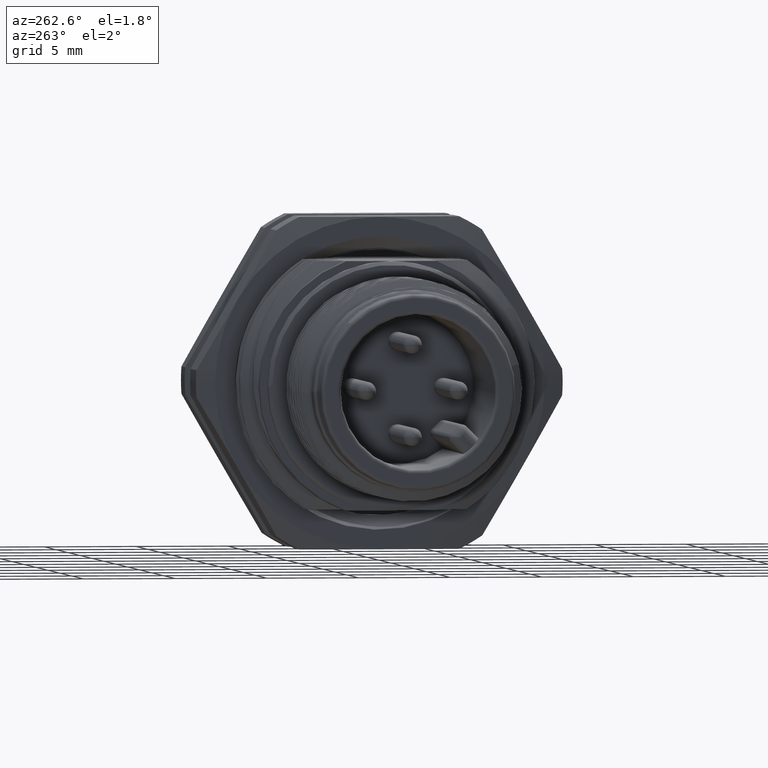
[diagram: clean part render]
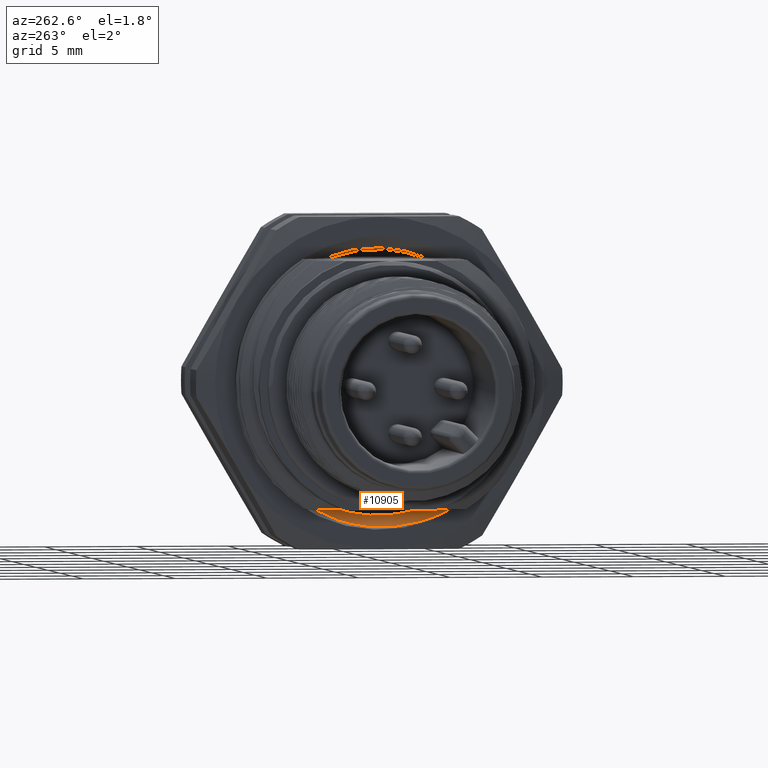
[diagram: same view with one face highlighted and labeled with its STEP entity id]
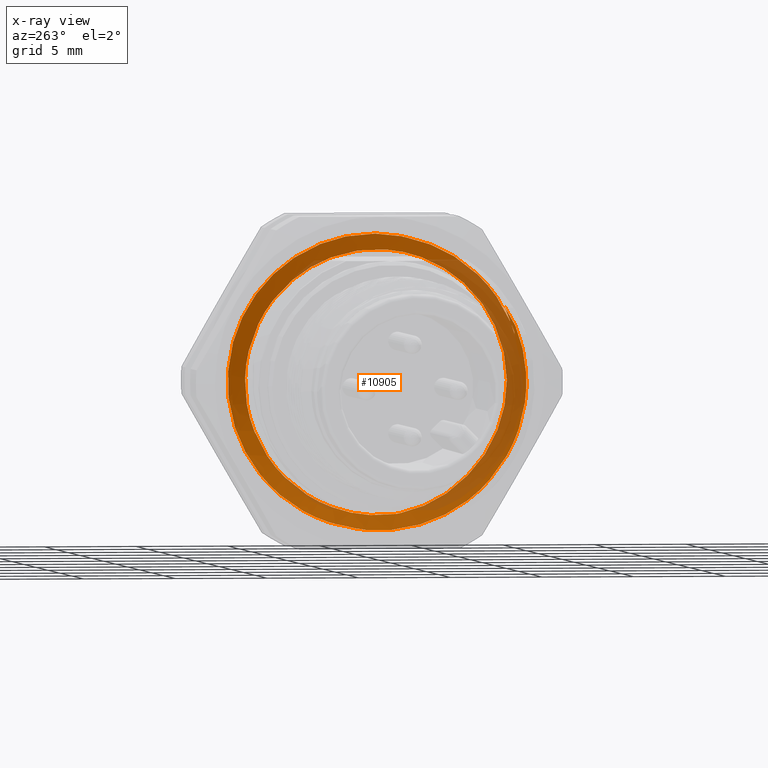
[diagram: x-ray of the same camera — body ghosted, the highlighted face saturated]
A machine part, auxiliary view. The second image highlights one B-rep face of the part: STEP entity #10905.
The next image is the same camera in x-ray: the body ghosted, the highlighted face saturated — about 34% of this face is hidden behind the body in this view.
In plain terms, the highlighted face is a freeform B-spline surface patch.
Its self-contained STEP definition (entity closure, byte-faithful):
#1769=CARTESIAN_POINT('',(1.759999964489E1,-6.795931557525E0,4.102091540967E0));
#1770=CARTESIAN_POINT('',(1.759999964489E1,-6.870510442348E0,3.991906153182E0));
#1771=CARTESIAN_POINT('',(1.759999389188E1,-7.013888288153E0,3.768115721921E0));
#1772=CARTESIAN_POINT('',(1.760002191107E1,-7.212305919957E0,3.421822081860E0));
#1773=CARTESIAN_POINT('',(1.759995294624E1,-7.332192643471E0,3.184645946563E0));
#1774=CARTESIAN_POINT('',(1.759995294624E1,-7.389397856577E0,3.064519374415E0));
#1792=CARTESIAN_POINT('',(1.684999952038E1,-5.086060040265E0,
-5.079304777779E0));
#1793=CARTESIAN_POINT('',(1.685796798191E1,-4.823459686649E0,
-5.353536325013E0));
#1794=CARTESIAN_POINT('',(1.687366803260E1,-4.253788885232E0,
-5.861059801676E0));
#1795=CARTESIAN_POINT('',(1.689796127939E1,-3.284489491633E0,
-6.481612577472E0));
#1796=CARTESIAN_POINT('',(1.692193318027E1,-2.230119204469E0,
-6.940817409034E0));
#1797=CARTESIAN_POINT('',(1.694559115843E1,-1.110619365085E0,
-7.229284465146E0));
#1798=CARTESIAN_POINT('',(1.696997098444E1,4.090123851100E-2,
-7.338212545404E0));
#1799=CARTESIAN_POINT('',(1.699348319227E1,1.197020596878E0,-7.264110894417E0));
#1800=CARTESIAN_POINT('',(1.701747815878E1,2.334140992811E0,-7.007594587236E0));
#1801=CARTESIAN_POINT('',(1.704159418216E1,3.415277133703E0,-6.576145626498E0));
#1802=CARTESIAN_POINT('',(1.706498966521E1,4.418915945452E0,-5.977781058642E0));
#1803=CARTESIAN_POINT('',(1.708923325399E1,5.319779103818E0,-5.226906965395E0));
#1804=CARTESIAN_POINT('',(1.711288316741E1,6.091491739147E0,-4.343901392401E0));
#1805=CARTESIAN_POINT('',(1.713652114921E1,6.718823047016E0,-3.344935130778E0));
#1806=CARTESIAN_POINT('',(1.716070806947E1,7.181618904648E0,-2.261847263783E0));
#1807=CARTESIAN_POINT('',(1.718397388781E1,7.469870320844E0,-1.117220751675E0));
#1808=CARTESIAN_POINT('',(1.720793966299E1,7.576666189177E0,6.617656375429E-2));
#1809=CARTESIAN_POINT('',(1.723179472965E1,7.497246604516E0,1.250084274952E0));
#1810=CARTESIAN_POINT('',(1.725509791539E1,7.232588394725E0,2.412255813783E0));
#1811=CARTESIAN_POINT('',(1.727922968734E1,6.789449136750E0,3.521261448386E0));
#1812=CARTESIAN_POINT('',(1.730262296540E1,6.178379098081E0,4.548045941363E0));
#1813=CARTESIAN_POINT('',(1.732620126636E1,5.410129212835E0,5.472740536805E0));
#1814=CARTESIAN_POINT('',(1.735021173926E1,4.509102863233E0,6.265419101540E0));
#1815=CARTESIAN_POINT('',(1.737330704205E1,3.493118017818E0,6.909941103460E0));
#1816=CARTESIAN_POINT('',(1.739721009610E1,2.383083624084E0,7.391959199171E0));
#1817=CARTESIAN_POINT('',(1.742077307499E1,1.212882635643E0,7.695102399338E0));
#1818=CARTESIAN_POINT('',(1.743642926235E1,4.073118136597E-1,7.774291706221E0));
#1819=CARTESIAN_POINT('',(1.744429947732E1,3.353992161010E-3,7.782336158824E0));
#1826=CARTESIAN_POINT('',(1.637131857850E1,-2.470798251417E0,6.750000000059E0));
#1827=CARTESIAN_POINT('',(1.638340311239E1,-2.815937909544E0,6.623663635044E0));
#1828=CARTESIAN_POINT('',(1.640756469152E1,-3.487193917543E0,6.318052158681E0));
#1829=CARTESIAN_POINT('',(1.644507645818E1,-4.417237827248E0,5.706522754052E0));
#1830=CARTESIAN_POINT('',(1.648113145260E1,-5.234295538383E0,4.966984338481E0));
#1831=CARTESIAN_POINT('',(1.651748625495E1,-5.929000217318E0,4.113449968504E0));
#1832=CARTESIAN_POINT('',(1.655488409183E1,-6.491156707167E0,3.154158007373E0));
#1833=CARTESIAN_POINT('',(1.659134508390E1,-6.901727036611E0,2.109899042490E0));
#1834=CARTESIAN_POINT('',(1.662861432181E1,-7.143371833531E0,1.022437164759E0));
#1835=CARTESIAN_POINT('',(1.666516691488E1,-7.215692313247E0,
-7.503583631873E-2));
#1836=CARTESIAN_POINT('',(1.670145208842E1,-7.119394213335E0,
-1.183367675704E0));
#1837=CARTESIAN_POINT('',(1.673948006571E1,-6.848465770686E0,
-2.278465488942E0));
#1838=CARTESIAN_POINT('',(1.677636405780E1,-6.409964878106E0,
-3.315788802447E0));
#1839=CARTESIAN_POINT('',(1.681293421966E1,-5.826172047950E0,
-4.257967132033E0));
#1840=CARTESIAN_POINT('',(1.683782900319E1,-5.345716851731E0,
-4.819306776092E0));
#1841=CARTESIAN_POINT('',(1.684999952038E1,-5.086060040265E0,
-5.079304777779E0));
#1891=CARTESIAN_POINT('',(1.534996865269E1,-5.085239577698E0,
-5.080126135244E0));
#1892=CARTESIAN_POINT('',(1.532150437920E1,-5.359050323793E0,
-4.846227517930E0));
#1893=CARTESIAN_POINT('',(1.526400599228E1,-5.876937690149E0,
-4.332816855563E0));
#1894=CARTESIAN_POINT('',(1.518048269960E1,-6.535091659273E0,
-3.441095649684E0));
#1895=CARTESIAN_POINT('',(1.509467697721E1,-7.056924963117E0,
-2.450216842963E0));
#1896=CARTESIAN_POINT('',(1.501283140325E1,-7.414900292562E0,
-1.427688785964E0));
#1897=CARTESIAN_POINT('',(1.493165911377E1,-7.627402032768E0,
-3.342668587155E-1));
#1898=CARTESIAN_POINT('',(1.484558953422E1,-7.676887701023E0,
8.177376412392E-1));
#1899=CARTESIAN_POINT('',(1.476411502074E1,-7.557086563401E0,1.934764851801E0));
#1900=CARTESIAN_POINT('',(1.468288322419E1,-7.272777433236E0,3.041608057510E0));
#1901=CARTESIAN_POINT('',(1.462772510213E1,-6.972725799039E0,3.755302890242E0));
#1902=CARTESIAN_POINT('',(1.459992037564E1,-6.795893613042E0,4.102065834945E0));
#1904=CARTESIAN_POINT('',(1.459992037564E1,-6.795893613042E0,4.102065834945E0));
#1905=CARTESIAN_POINT('',(1.459992037564E1,-6.870660487587E0,3.991702568296E0));
#1906=CARTESIAN_POINT('',(1.460003687697E1,-7.014078413820E0,3.767530428753E0));
#1907=CARTESIAN_POINT('',(1.459999036714E1,-7.212535382857E0,3.421280478472E0));
#1908=CARTESIAN_POINT('',(1.459999789202E1,-7.332358032771E0,3.184439914979E0));
#1909=CARTESIAN_POINT('',(1.459999789202E1,-7.389508797288E0,3.064567858644E0));
#1911=CARTESIAN_POINT('',(1.562111766024E1,2.470798251643E0,-6.749999999976E0));
#1912=CARTESIAN_POINT('',(1.563411221994E1,2.836739946822E0,-6.616049170253E0));
#1913=CARTESIAN_POINT('',(1.566048912442E1,3.546785272395E0,-6.288503347263E0));
#1914=CARTESIAN_POINT('',(1.569865147601E1,4.518314809828E0,-5.631149242290E0));
#1915=CARTESIAN_POINT('',(1.573775149051E1,5.370564688501E0,-4.825142785761E0));
#1916=CARTESIAN_POINT('',(1.577679923244E1,6.081026248223E0,-3.891800175125E0));
#1917=CARTESIAN_POINT('',(1.581503115074E1,6.631006685933E0,-2.855659018395E0));
#1918=CARTESIAN_POINT('',(1.585461899603E1,7.005933165283E0,-1.744114676011E0));
#1919=CARTESIAN_POINT('',(1.589286820731E1,7.195902727927E0,
-5.865262349434E-1));
#1920=CARTESIAN_POINT('',(1.593182967661E1,7.195901428262E0,5.865274610951E-1));
#1921=CARTESIAN_POINT('',(1.597102419056E1,7.005937972825E0,1.744097398652E0));
#1922=CARTESIAN_POINT('',(1.600917938833E1,6.631003732205E0,2.855666741308E0));
#1923=CARTESIAN_POINT('',(1.604873377514E1,6.081030601290E0,3.891792724281E0));
#1924=CARTESIAN_POINT('',(1.608709572742E1,5.370561175653E0,4.825147763251E0));
#1925=CARTESIAN_POINT('',(1.612591022878E1,4.518316281084E0,5.631145940189E0));
#1926=CARTESIAN_POINT('',(1.616523226426E1,3.546808501846E0,6.288491035961E0));
#1927=CARTESIAN_POINT('',(1.619063415955E1,2.836738955662E0,6.616049533062E0));
#1928=CARTESIAN_POINT('',(1.620356284954E1,2.470798251634E0,6.749999999979E0));
#4720=CARTESIAN_POINT('',(1.534996865269E1,-5.085239577698E0,
-5.080126135244E0));
#4721=CARTESIAN_POINT('',(1.536169057234E1,-4.839872329166E0,
-5.325601526469E0));
#4722=CARTESIAN_POINT('',(1.538461309847E1,-4.311335893991E0,
-5.783094934137E0));
#4723=CARTESIAN_POINT('',(1.541879632078E1,-3.432605891104E0,
-6.343995236702E0));
#4724=CARTESIAN_POINT('',(1.544218803182E1,-2.797219607513E0,
-6.630515360663E0));
#4725=CARTESIAN_POINT('',(1.545383187531E1,-2.470798251502E0,
-6.750000000028E0));
#4991=CARTESIAN_POINT('',(1.545383187531E1,-2.470798251502E0,
-6.750000000028E0));
#4992=CARTESIAN_POINT('',(1.546505626440E1,-2.156135802866E0,
-6.865180359720E0));
#4993=CARTESIAN_POINT('',(1.548715918210E1,-1.509992624646E0,
-7.051688810605E0));
#4994=CARTESIAN_POINT('',(1.552030918237E1,-5.095920920290E-1,
-7.193651930829E0));
#4995=CARTESIAN_POINT('',(1.555444996032E1,5.039603746194E-1,
-7.194117328290E0));
#4996=CARTESIAN_POINT('',(1.558774685471E1,1.506863134447E0,-7.052495329339E0));
#4997=CARTESIAN_POINT('',(1.560990377328E1,2.155002341924E0,-6.865595256507E0));
#4998=CARTESIAN_POINT('',(1.562111766024E1,2.470798251643E0,-6.749999999976E0));
#5141=CARTESIAN_POINT('',(1.620356284954E1,2.470798251634E0,6.749999999979E0));
#5142=CARTESIAN_POINT('',(1.621472032396E1,2.154991000732E0,6.865599407885E0));
#5143=CARTESIAN_POINT('',(1.623735148611E1,1.507137079639E0,7.052395313245E0));
#5144=CARTESIAN_POINT('',(1.627089833049E1,5.056994118818E-1,7.193888338206E0));
#5145=CARTESIAN_POINT('',(1.630393013574E1,-5.057011683070E-1,
7.193887596244E0));
#5146=CARTESIAN_POINT('',(1.633789856198E1,-1.507125222792E0,7.052397755271E0));
#5147=CARTESIAN_POINT('',(1.636026096829E1,-2.154987989727E0,6.865600510046E0));
#5148=CARTESIAN_POINT('',(1.637131857850E1,-2.470798251417E0,6.750000000059E0));
#5150=CARTESIAN_POINT('',(1.759995294624E1,-7.389397856577E0,3.064519374415E0));
#5151=CARTESIAN_POINT('',(1.758752648398E1,-7.227907585726E0,3.453627635215E0));
#5152=CARTESIAN_POINT('',(1.756224584879E1,-6.843602799695E0,4.206260136705E0));
#5153=CARTESIAN_POINT('',(1.752459181511E1,-6.097335804787E0,5.230604570646E0));
#5154=CARTESIAN_POINT('',(1.748693074640E1,-5.198955428018E0,6.121859226686E0));
#5155=CARTESIAN_POINT('',(1.744966962114E1,-4.184617618130E0,6.856888617194E0));
#5156=CARTESIAN_POINT('',(1.741211874402E1,-3.059058782926E0,7.427321213443E0));
#5157=CARTESIAN_POINT('',(1.737471913180E1,-1.862303720586E0,7.812780557949E0));
#5158=CARTESIAN_POINT('',(1.733730801372E1,-6.203544574359E-1,
8.009274249215E0));
#5159=CARTESIAN_POINT('',(1.729988453609E1,6.373788011952E-1,8.006709256061E0));
#5160=CARTESIAN_POINT('',(1.726244570931E1,1.880339603956E0,7.808925683913E0));
#5161=CARTESIAN_POINT('',(1.722498522774E1,3.077800955962E0,7.420282944069E0));
#5162=CARTESIAN_POINT('',(1.718751239339E1,4.199275140019E0,6.846882410905E0));
#5163=CARTESIAN_POINT('',(1.714989377532E1,5.222168122548E0,6.103326363124E0));
#5164=CARTESIAN_POINT('',(1.711255898040E1,6.109249314757E0,5.215990474021E0));
#5165=CARTESIAN_POINT('',(1.707489975328E1,6.852076990804E0,4.190968757098E0));
#5166=CARTESIAN_POINT('',(1.703725360161E1,7.426295220263E0,3.063196392284E0));
#5167=CARTESIAN_POINT('',(1.699968384438E1,7.813982922482E0,1.861625841523E0));
#5168=CARTESIAN_POINT('',(1.696224163228E1,8.007872636731E0,6.179771362672E-1));
#5169=CARTESIAN_POINT('',(1.692480711401E1,8.007817417602E0,
-6.402874280401E-1));
#5170=CARTESIAN_POINT('',(1.688730433381E1,7.807772170349E0,-1.884645137525E0));
#5171=CARTESIAN_POINT('',(1.684995790601E1,7.418922999367E0,-3.078446897724E0));
#5172=CARTESIAN_POINT('',(1.681211823363E1,6.841662937559E0,-4.211641122912E0));
#5173=CARTESIAN_POINT('',(1.677435779599E1,6.091551883392E0,-5.235552203328E0));
#5174=CARTESIAN_POINT('',(1.673661549370E1,5.191553145930E0,-6.129921347836E0));
#5175=CARTESIAN_POINT('',(1.669895010186E1,4.164409372129E0,-6.869719240303E0));
#5176=CARTESIAN_POINT('',(1.666129215999E1,3.032971763524E0,-7.437457417439E0));
#5177=CARTESIAN_POINT('',(1.662357381071E1,1.825169589818E0,-7.823301718430E0));
#5178=CARTESIAN_POINT('',(1.658585779760E1,5.718533442558E-1,
-8.012845226112E0));
#5179=CARTESIAN_POINT('',(1.654811883825E1,-6.967479166356E-1,
-8.001507691632E0));
#5180=CARTESIAN_POINT('',(1.651088499859E1,-1.931487843413E0,
-7.797242648184E0));
#5181=CARTESIAN_POINT('',(1.647351344606E1,-3.122909186105E0,
-7.400029267110E0));
#5182=CARTESIAN_POINT('',(1.643629973902E1,-4.233852574111E0,
-6.824853043643E0));
#5183=CARTESIAN_POINT('',(1.639921694597E1,-5.239362945858E0,
-6.088629406448E0));
#5184=CARTESIAN_POINT('',(1.636223220240E1,-6.114883530315E0,
-5.206346793441E0));
#5185=CARTESIAN_POINT('',(1.632519036625E1,-6.846819212765E0,
-4.199002298774E0));
#5186=CARTESIAN_POINT('',(1.628795317524E1,-7.416678441388E0,
-3.084972729146E0));
#5187=CARTESIAN_POINT('',(1.625071546401E1,-7.805092950142E0,
-1.895072719163E0));
#5188=CARTESIAN_POINT('',(1.621286480597E1,-8.008171120851E0,
-6.389727871277E-1));
#5189=CARTESIAN_POINT('',(1.617501296861E1,-8.008473430321E0,
6.331843617101E-1));
#5190=CARTESIAN_POINT('',(1.613718729350E1,-7.807040718569E0,1.888726101003E0));
#5191=CARTESIAN_POINT('',(1.609949269377E1,-7.414093715313E0,3.093346210454E0));
#5192=CARTESIAN_POINT('',(1.606184696860E1,-6.835740093180E0,4.218606953525E0));
#5193=CARTESIAN_POINT('',(1.602418464727E1,-6.087589581567E0,5.240048061326E0));
#5194=CARTESIAN_POINT('',(1.598653070294E1,-5.190089699984E0,6.132405079482E0));
#5195=CARTESIAN_POINT('',(1.594879125370E1,-4.159127667789E0,6.871304717679E0));
#5196=CARTESIAN_POINT('',(1.591147392488E1,-3.038513479987E0,7.435317638292E0));
#5197=CARTESIAN_POINT('',(1.587388035116E1,-1.835460799801E0,7.821017454258E0));
#5198=CARTESIAN_POINT('',(1.583632277080E1,-5.872566293355E-1,
8.010324430209E0));
#5199=CARTESIAN_POINT('',(1.579882348592E1,6.733023185199E-1,8.004524448845E0));
#5200=CARTESIAN_POINT('',(1.576137119861E1,1.915346737175E0,7.801106781021E0));
#5201=CARTESIAN_POINT('',(1.572390092634E1,3.111020566151E0,7.404879606557E0));
#5202=CARTESIAN_POINT('',(1.568636916253E1,4.232656767529E0,6.827456909581E0));
#5203=CARTESIAN_POINT('',(1.564902027238E1,5.244247816390E0,6.084353821323E0));
#5204=CARTESIAN_POINT('',(1.561128417728E1,6.136640777851E0,5.182729273715E0));
#5205=CARTESIAN_POINT('',(1.557366602257E1,6.874898084559E0,4.156197548701E0));
#5206=CARTESIAN_POINT('',(1.553608328080E1,7.440105931244E0,3.026582970001E0));
#5207=CARTESIAN_POINT('',(1.549859001516E1,7.822063459494E0,1.825408967509E0));
#5208=CARTESIAN_POINT('',(1.546116805095E1,8.012001676692E0,5.821944114360E-1));
#5209=CARTESIAN_POINT('',(1.542381951554E1,8.003206533017E0,
-6.731064953172E-1));
#5210=CARTESIAN_POINT('',(1.538649995399E1,7.801907962949E0,-1.911410986591E0));
#5211=CARTESIAN_POINT('',(1.534901332491E1,7.407232956417E0,-3.107689757133E0));
#5212=CARTESIAN_POINT('',(1.531173091270E1,6.832773422786E0,-4.221559260078E0));
#5213=CARTESIAN_POINT('',(1.527398789204E1,6.084431556055E0,-5.246063287452E0));
#5214=CARTESIAN_POINT('',(1.523616317578E1,5.180274526708E0,-6.139690367151E0));
#5215=CARTESIAN_POINT('',(1.519834564213E1,4.146324010872E0,-6.879520042630E0));
#5216=CARTESIAN_POINT('',(1.516060237760E1,3.012064284672E0,-7.447753061130E0));
#5217=CARTESIAN_POINT('',(1.512291361676E1,1.803538499348E0,-7.827360974029E0));
#5218=CARTESIAN_POINT('',(1.508531028244E1,5.531297370365E-1,
-8.012986503156E0));
#5219=CARTESIAN_POINT('',(1.504807488483E1,-6.982259113539E-1,
-8.002599291125E0));
#5220=CARTESIAN_POINT('',(1.501067313019E1,-1.937916196038E0,
-7.794233249102E0));
#5221=CARTESIAN_POINT('',(1.497350985119E1,-3.123308828521E0,
-7.399839953461E0));
#5222=CARTESIAN_POINT('',(1.493637937445E1,-4.231863833986E0,
-6.827233168606E0));
#5223=CARTESIAN_POINT('',(1.489926454249E1,-5.237180142222E0,
-6.088527651220E0));
#5224=CARTESIAN_POINT('',(1.486216317564E1,-6.117514693644E0,
-5.205215834784E0));
#5225=CARTESIAN_POINT('',(1.482507761929E1,-6.848710623451E0,
-4.196094447457E0));
#5226=CARTESIAN_POINT('',(1.478796321560E1,-7.415466849522E0,
-3.084632211313E0));
#5227=CARTESIAN_POINT('',(1.475059876362E1,-7.807090965876E0,
-1.891446468797E0));
#5228=CARTESIAN_POINT('',(1.471334986467E1,-8.005415541550E0,
-6.553121823373E-1));
#5229=CARTESIAN_POINT('',(1.467561814375E1,-8.009312315919E0,
6.128423973847E-1));
#5230=CARTESIAN_POINT('',(1.463782017644E1,-7.813276704051E0,1.869262113745E0));
#5231=CARTESIAN_POINT('',(1.461253134706E1,-7.551401800630E0,2.674626286198E0));
#5232=CARTESIAN_POINT('',(1.459999789202E1,-7.389508797288E0,3.064567858644E0));
#5234=CARTESIAN_POINT('',(1.459999789202E1,-7.389508797288E0,3.064567858644E0));
#5279=CARTESIAN_POINT('',(1.744429947732E1,3.353992161010E-3,7.782336158824E0));
#5280=CARTESIAN_POINT('',(1.745174249310E1,-3.786767975135E-1,
7.789943954532E0));
#5281=CARTESIAN_POINT('',(1.746673761669E1,-1.146853564165E0,7.749028084881E0));
#5282=CARTESIAN_POINT('',(1.748926297582E1,-2.291733432719E0,7.514714874538E0));
#5283=CARTESIAN_POINT('',(1.751170538460E1,-3.386513175202E0,7.112838375866E0));
#5284=CARTESIAN_POINT('',(1.753372082629E1,-4.390199215284E0,6.566646990514E0));
#5285=CARTESIAN_POINT('',(1.755556093012E1,-5.307078705011E0,5.881165926240E0));
#5286=CARTESIAN_POINT('',(1.757782765256E1,-6.128889728262E0,5.054694975210E0));
#5287=CARTESIAN_POINT('',(1.759262047731E1,-6.589250096791E0,4.430221036150E0));
#5288=CARTESIAN_POINT('',(1.759999964489E1,-6.795931557525E0,4.102091540967E0));
#9133=VERTEX_POINT('',#5234);
#9134=VERTEX_POINT('',#1904);
#9137=VERTEX_POINT('',#5279);
#9138=VERTEX_POINT('',#5288);
#9141=VERTEX_POINT('',#1774);
#9192=CARTESIAN_POINT('',(1.562111766024E1,2.470798251643E0,-6.749999999976E0));
#9193=VERTEX_POINT('',#9192);
#9194=CARTESIAN_POINT('',(1.545383187531E1,-2.470798251502E0,
-6.750000000028E0));
#9195=VERTEX_POINT('',#9194);
#9203=CARTESIAN_POINT('',(1.637131857850E1,-2.470798251417E0,6.750000000059E0));
#9205=VERTEX_POINT('',#9203);
#9207=CARTESIAN_POINT('',(1.620356284954E1,2.470798251634E0,6.749999999979E0));
#9209=VERTEX_POINT('',#9207);
#9212=CARTESIAN_POINT('',(1.535E1,-5.083803239131E0,-5.081563600488E0));
#9214=VERTEX_POINT('',#9212);
#9215=VERTEX_POINT('',#1841);
#10736=CARTESIAN_POINT('',(1.502330666768E1,-5.529575992042E0,
4.525570442560E0));
#10737=CARTESIAN_POINT('',(1.485075348432E1,-5.760850091858E0,
4.714852085813E0));
#10738=CARTESIAN_POINT('',(1.467820030096E1,-5.992124191675E0,
4.904133729066E0));
#10739=CARTESIAN_POINT('',(1.450564711761E1,-6.223398291492E0,
5.093415372319E0));
#10740=CARTESIAN_POINT('',(1.503466995415E1,-5.744856605006E0,
4.262237778031E0));
#10741=CARTESIAN_POINT('',(1.486211677079E1,-5.985134800261E0,
4.440505552403E0));
#10742=CARTESIAN_POINT('',(1.468956358743E1,-6.225412995517E0,
4.618773326776E0));
#10743=CARTESIAN_POINT('',(1.451701040407E1,-6.465691190773E0,
4.797041101148E0));
#10744=CARTESIAN_POINT('',(1.505868350943E1,-6.160193221132E0,
3.673321154749E0));
#10745=CARTESIAN_POINT('',(1.488613032607E1,-6.417842839107E0,
3.826957535664E0));
#10746=CARTESIAN_POINT('',(1.471357714271E1,-6.675492457082E0,
3.980593916578E0));
#10747=CARTESIAN_POINT('',(1.454102395936E1,-6.933142075057E0,
4.134230297492E0));
#10748=CARTESIAN_POINT('',(1.511558484812E1,-6.925551774232E0,
2.146060884959E0));
#10749=CARTESIAN_POINT('',(1.494303166477E1,-7.215212456104E0,
2.235819720002E0));
#10750=CARTESIAN_POINT('',(1.477047848141E1,-7.504873137976E0,
2.325578555045E0));
#10751=CARTESIAN_POINT('',(1.459792529805E1,-7.794533819849E0,
2.415337390088E0));
#10752=CARTESIAN_POINT('',(1.519401068376E1,-7.348976131360E0,
-2.144025463928E-1));
#10753=CARTESIAN_POINT('',(1.502145750040E1,-7.656346505110E0,
-2.233699167621E-1));
#10754=CARTESIAN_POINT('',(1.484890431704E1,-7.963716878861E0,
-2.323372871314E-1));
#10755=CARTESIAN_POINT('',(1.467635113368E1,-8.271087252612E0,
-2.413046575008E-1));
#10756=CARTESIAN_POINT('',(1.529267403400E1,-6.644135407215E0,
-3.147791109640E0));
#10757=CARTESIAN_POINT('',(1.512012085064E1,-6.922025870712E0,
-3.279447235956E0));
#10758=CARTESIAN_POINT('',(1.494756766728E1,-7.199916334209E0,
-3.411103362272E0));
#10759=CARTESIAN_POINT('',(1.477501448392E1,-7.477806797706E0,
-3.542759488588E0));
#10760=CARTESIAN_POINT('',(1.539133738424E1,-4.820556846702E0,
-5.551166779642E0));
#10761=CARTESIAN_POINT('',(1.521878420088E1,-5.022176274114E0,
-5.783343912524E0));
#10762=CARTESIAN_POINT('',(1.504623101752E1,-5.223795701526E0,
-6.015521045406E0));
#10763=CARTESIAN_POINT('',(1.487367783416E1,-5.425415128939E0,
-6.247698178288E0));
#10764=CARTESIAN_POINT('',(1.549000073448E1,-2.185271654875E0,
-7.019813557392E0));
#10765=CARTESIAN_POINT('',(1.531744755112E1,-2.276670477421E0,
-7.313416731253E0));
#10766=CARTESIAN_POINT('',(1.514489436776E1,-2.368069299968E0,
-7.607019905113E0));
#10767=CARTESIAN_POINT('',(1.497234118440E1,-2.459468122514E0,
-7.900623078973E0));
#10768=CARTESIAN_POINT('',(1.558866408471E1,8.179748449506E-1,
-7.306443575425E0));
#10769=CARTESIAN_POINT('',(1.541611090135E1,8.521865812920E-1,
-7.612035028224E0));
#10770=CARTESIAN_POINT('',(1.524355771799E1,8.863983176334E-1,
-7.917626481024E0));
#10771=CARTESIAN_POINT('',(1.507100453463E1,9.206100539747E-1,
-8.223217933823E0));
#10772=CARTESIAN_POINT('',(1.568732743495E1,3.683488596093E0,
-6.362791155289E0));
#10773=CARTESIAN_POINT('',(1.551477425159E1,3.837550229472E0,
-6.628914416620E0));
#10774=CARTESIAN_POINT('',(1.534222106823E1,3.991611862851E0,
-6.895037677950E0));
#10775=CARTESIAN_POINT('',(1.516966788487E1,4.145673496230E0,
-7.161160939280E0));
#10776=CARTESIAN_POINT('',(1.578599078519E1,5.928764803396E0,
-4.347752006787E0));
#10777=CARTESIAN_POINT('',(1.561343760183E1,6.176734945210E0,
-4.529596407346E0));
#10778=CARTESIAN_POINT('',(1.544088441847E1,6.424705087024E0,
-4.711440807905E0));
#10779=CARTESIAN_POINT('',(1.526833123511E1,6.672675228838E0,
-4.893285208464E0));
#10780=CARTESIAN_POINT('',(1.588465413543E1,7.175736925677E0,
-1.600624632506E0));
#10781=CARTESIAN_POINT('',(1.571210095207E1,7.475861582683E0,
-1.667570637333E0));
#10782=CARTESIAN_POINT('',(1.553954776871E1,7.775986239690E0,
-1.734516642160E0));
#10783=CARTESIAN_POINT('',(1.536699458535E1,8.076110896696E0,
-1.801462646987E0));
#10784=CARTESIAN_POINT('',(1.598331748566E1,7.214435824520E0,1.416020957418E0));
#10785=CARTESIAN_POINT('',(1.581076430231E1,7.516179060061E0,1.475245927413E0));
#10786=CARTESIAN_POINT('',(1.563821111895E1,7.817922295602E0,1.534470897409E0));
#10787=CARTESIAN_POINT('',(1.546565793559E1,8.119665531143E0,1.593695867405E0));
#10788=CARTESIAN_POINT('',(1.608198083590E1,6.038345267908E0,4.194232474743E0));
#10789=CARTESIAN_POINT('',(1.590942765254E1,6.290898604412E0,4.369655932417E0));
#10790=CARTESIAN_POINT('',(1.573687446918E1,6.543451940915E0,4.545079390090E0));
#10791=CARTESIAN_POINT('',(1.556432128582E1,6.796005277419E0,4.720502847763E0));
#10792=CARTESIAN_POINT('',(1.618064418614E1,3.845499090185E0,6.266205899219E0));
#10793=CARTESIAN_POINT('',(1.600809100278E1,4.006336800299E0,6.528289489476E0));
#10794=CARTESIAN_POINT('',(1.583553781942E1,4.167174510413E0,6.790373079733E0));
#10795=CARTESIAN_POINT('',(1.566298463606E1,4.328012220527E0,7.052456669989E0));
#10796=CARTESIAN_POINT('',(1.627930753638E1,1.005135647520E0,7.283055811593E0));
#10797=CARTESIAN_POINT('',(1.610675435302E1,1.047175370357E0,7.587669072929E0));
#10798=CARTESIAN_POINT('',(1.593420116966E1,1.089215093195E0,7.892282334264E0));
#10799=CARTESIAN_POINT('',(1.576164798630E1,1.131254816033E0,8.196895595599E0));
#10800=CARTESIAN_POINT('',(1.637797088662E1,-2.004475705608E0,
7.073561816382E0));
#10801=CARTESIAN_POINT('',(1.620541770326E1,-2.088312751169E0,
7.369413007133E0));
#10802=CARTESIAN_POINT('',(1.603286451990E1,-2.172149796730E0,
7.665264197885E0));
#10803=CARTESIAN_POINT('',(1.586031133654E1,-2.255986842292E0,
7.961115388636E0));
#10804=CARTESIAN_POINT('',(1.647663423685E1,-4.676567117510E0,
5.672999173276E0));
#10805=CARTESIAN_POINT('',(1.630408105349E1,-4.872164185325E0,
5.910271936862E0));
#10806=CARTESIAN_POINT('',(1.613152787013E1,-5.067761253140E0,
6.147544700449E0));
#10807=CARTESIAN_POINT('',(1.595897468677E1,-5.263358320954E0,
6.384817464035E0));
#10808=CARTESIAN_POINT('',(1.657529758709E1,-6.561203408773E0,
3.317199037333E0));
#10809=CARTESIAN_POINT('',(1.640274440373E1,-6.835625247670E0,
3.455940637489E0));
#10810=CARTESIAN_POINT('',(1.623019122037E1,-7.110047086567E0,
3.594682237644E0));
#10811=CARTESIAN_POINT('',(1.605763803701E1,-7.384468925464E0,
3.733423837800E0));
#10812=CARTESIAN_POINT('',(1.667396093733E1,-7.341043576724E0,
4.028384653899E-1));
#10813=CARTESIAN_POINT('',(1.650140775397E1,-7.648082171974E0,
4.196871539041E-1));
#10814=CARTESIAN_POINT('',(1.632885457061E1,-7.955120767224E0,
4.365358424183E-1));
#10815=CARTESIAN_POINT('',(1.615630138725E1,-8.262159362473E0,
4.533845309325E-1));
#10816=CARTESIAN_POINT('',(1.677262428757E1,-6.884775674355E0,
-2.579353317861E0));
#10817=CARTESIAN_POINT('',(1.660007110421E1,-7.172730898922E0,
-2.687234576299E0));
#10818=CARTESIAN_POINT('',(1.642751792085E1,-7.460686123488E0,
-2.795115834737E0));
#10819=CARTESIAN_POINT('',(1.625496473749E1,-7.748641348055E0,
-2.902997093174E0));
#10820=CARTESIAN_POINT('',(1.687128763780E1,-5.269227530087E0,
-5.127225454460E0));
#10821=CARTESIAN_POINT('',(1.669873445444E1,-5.489612575079E0,
-5.341671273309E0));
#10822=CARTESIAN_POINT('',(1.652618127108E1,-5.709997620070E0,
-5.556117092158E0));
#10823=CARTESIAN_POINT('',(1.635362808772E1,-5.930382665062E0,
-5.770562911007E0));
#10824=CARTESIAN_POINT('',(1.696995098804E1,-2.766430235711E0,
-6.811759198252E0));
#10825=CARTESIAN_POINT('',(1.679739780468E1,-2.882135972180E0,
-7.096660514192E0));
#10826=CARTESIAN_POINT('',(1.662484462132E1,-2.997841708649E0,
-7.381561830132E0));
#10827=CARTESIAN_POINT('',(1.645229143796E1,-3.113547445118E0,
-7.666463146073E0));
#10828=CARTESIAN_POINT('',(1.706861433828E1,2.021873067514E-1,
-7.349307444899E0));
#10829=CARTESIAN_POINT('',(1.689606115492E1,2.106437756330E-1,
-7.656691675814E0));
#10830=CARTESIAN_POINT('',(1.672350797156E1,2.191002445147E-1,
-7.964075906729E0));
#10831=CARTESIAN_POINT('',(1.655095478820E1,2.275567133964E-1,
-8.271460137644E0));
#10832=CARTESIAN_POINT('',(1.716727768852E1,3.136759912941E0,
-6.649356124206E0));
#10833=CARTESIAN_POINT('',(1.699472450516E1,3.267954660277E0,
-6.927464943802E0));
#10834=CARTESIAN_POINT('',(1.682217132180E1,3.399149407614E0,
-7.205573763398E0));
#10835=CARTESIAN_POINT('',(1.664961813844E1,3.530344154950E0,
-7.483682582994E0));
#10836=CARTESIAN_POINT('',(1.726594103875E1,5.543154991548E0,
-4.829765251063E0));
#10837=CARTESIAN_POINT('',(1.709338785540E1,5.774997031990E0,
-5.031769819302E0));
#10838=CARTESIAN_POINT('',(1.692083467204E1,6.006839072433E0,
-5.233774387540E0));
#10839=CARTESIAN_POINT('',(1.674828148868E1,6.238681112875E0,
-5.435778955778E0));
#10840=CARTESIAN_POINT('',(1.736460438899E1,7.016176151775E0,
-2.196923260784E0));
#10841=CARTESIAN_POINT('',(1.719205120563E1,7.309627191417E0,
-2.288809410878E0));
#10842=CARTESIAN_POINT('',(1.701949802227E1,7.603078231059E0,
-2.380695560972E0));
#10843=CARTESIAN_POINT('',(1.684694483891E1,7.896529270700E0,
-2.472581711066E0));
#10844=CARTESIAN_POINT('',(1.746326773923E1,7.307791437246E0,
8.058435537303E-1));
#10845=CARTESIAN_POINT('',(1.729071455587E1,7.613439264266E0,
8.395478997219E-1));
#10846=CARTESIAN_POINT('',(1.711816137251E1,7.919087091285E0,
8.732522457135E-1));
#10847=CARTESIAN_POINT('',(1.694560818915E1,8.224734918304E0,
9.069565917051E-1));
#10848=CARTESIAN_POINT('',(1.756193108947E1,6.368897775081E0,3.672920050642E0));
#10849=CARTESIAN_POINT('',(1.738937790611E1,6.635276445328E0,3.826539655396E0));
#10850=CARTESIAN_POINT('',(1.721682472275E1,6.901655115574E0,3.980159260151E0));
#10851=CARTESIAN_POINT('',(1.704427153939E1,7.168033785821E0,4.133778864906E0));
#10852=CARTESIAN_POINT('',(1.766059443971E1,4.357588934508E0,5.921538082626E0));
#10853=CARTESIAN_POINT('',(1.748804125635E1,4.539844763834E0,6.169205967384E0));
#10854=CARTESIAN_POINT('',(1.731548807299E1,4.722100593160E0,6.416873852142E0));
#10855=CARTESIAN_POINT('',(1.714293488963E1,4.904356422486E0,6.664541736900E0));
#10856=CARTESIAN_POINT('',(1.775925778994E1,1.612535840057E0,7.173071106033E0));
#10857=CARTESIAN_POINT('',(1.758670460658E1,1.679980030249E0,7.473084265333E0));
#10858=CARTESIAN_POINT('',(1.741415142322E1,1.747424220441E0,7.773097424632E0));
#10859=CARTESIAN_POINT('',(1.724159823986E1,1.814868410633E0,8.073110583932E0));
#10860=CARTESIAN_POINT('',(1.785792114018E1,-1.404042297837E0,
7.216771397599E0));
#10861=CARTESIAN_POINT('',(1.768536795682E1,-1.462766261293E0,
7.518612318310E0));
#10862=CARTESIAN_POINT('',(1.751281477346E1,-1.521490224749E0,
7.820453239021E0));
#10863=CARTESIAN_POINT('',(1.734026159010E1,-1.580214188205E0,
8.122294159731E0));
#10864=CARTESIAN_POINT('',(1.795658449042E1,-4.184198987995E0,
6.045320294248E0));
#10865=CARTESIAN_POINT('',(1.778403130706E1,-4.359202795837E0,
6.298165360705E0));
#10866=CARTESIAN_POINT('',(1.761147812370E1,-4.534206603680E0,
6.551010427163E0));
#10867=CARTESIAN_POINT('',(1.743892494034E1,-4.709210411522E0,
6.803855493620E0));
#10868=CARTESIAN_POINT('',(1.803501046794E1,-5.834080859131E0,
4.304921944355E0));
#10869=CARTESIAN_POINT('',(1.786245728458E1,-6.078090852098E0,
4.484974980779E0));
#10870=CARTESIAN_POINT('',(1.768990410122E1,-6.322100845064E0,
4.665028017203E0));
#10871=CARTESIAN_POINT('',(1.751735091786E1,-6.566110838030E0,
4.845081053627E0));
#10872=CARTESIAN_POINT('',(1.809191195003E1,-6.610256152015E0,
2.783125410529E0));
#10873=CARTESIAN_POINT('',(1.791935876667E1,-6.886729618209E0,
2.899529421428E0));
#10874=CARTESIAN_POINT('',(1.774680558331E1,-7.163203084402E0,
3.015933432327E0));
#10875=CARTESIAN_POINT('',(1.757425239995E1,-7.439676550595E0,
3.132337443226E0));
#10876=CARTESIAN_POINT('',(1.811592564870E1,-6.838283925436E0,
2.099505025177E0));
#10877=CARTESIAN_POINT('',(1.794337246534E1,-7.124294636097E0,
2.187316664895E0));
#10878=CARTESIAN_POINT('',(1.777081928198E1,-7.410305346757E0,
2.275128304613E0));
#10879=CARTESIAN_POINT('',(1.759826609862E1,-7.696316057418E0,
2.362939944331E0));
#10880=CARTESIAN_POINT('',(1.812728893668E1,-6.922718356793E0,
1.770019529497E0));
#10881=CARTESIAN_POINT('',(1.795473575332E1,-7.212260531192E0,
1.844050463149E0));
#10882=CARTESIAN_POINT('',(1.778218256996E1,-7.501802705592E0,
1.918081396800E0));
#10883=CARTESIAN_POINT('',(1.760962938660E1,-7.791344879991E0,
1.992112330452E0));
#10884=B_SPLINE_SURFACE_WITH_KNOTS('',3,3,((#10736,#10737,#10738,#10739),
(#10740,#10741,#10742,#10743),(#10744,#10745,#10746,#10747),(#10748,#10749,
#10750,#10751),(#10752,#10753,#10754,#10755),(#10756,#10757,#10758,#10759),(
#10760,#10761,#10762,#10763),(#10764,#10765,#10766,#10767),(#10768,#10769,
#10770,#10771),(#10772,#10773,#10774,#10775),(#10776,#10777,#10778,#10779),(
#10780,#10781,#10782,#10783),(#10784,#10785,#10786,#10787),(#10788,#10789,
#10790,#10791),(#10792,#10793,#10794,#10795),(#10796,#10797,#10798,#10799),(
#10800,#10801,#10802,#10803),(#10804,#10805,#10806,#10807),(#10808,#10809,
#10810,#10811),(#10812,#10813,#10814,#10815),(#10816,#10817,#10818,#10819),(
#10820,#10821,#10822,#10823),(#10824,#10825,#10826,#10827),(#10828,#10829,
#10830,#10831),(#10832,#10833,#10834,#10835),(#10836,#10837,#10838,#10839),(
#10840,#10841,#10842,#10843),(#10844,#10845,#10846,#10847),(#10848,#10849,
#10850,#10851),(#10852,#10853,#10854,#10855),(#10856,#10857,#10858,#10859),(
#10860,#10861,#10862,#10863),(#10864,#10865,#10866,#10867),(#10868,#10869,
#10870,#10871),(#10872,#10873,#10874,#10875),(#10876,#10877,#10878,#10879),(
#10880,#10881,#10882,#10883)),.UNSPECIFIED.,.F.,.F.,.F.,(4,1,1,1,1,1,1,1,1,1,1,
1,1,1,1,1,1,1,1,1,1,1,1,1,1,1,1,1,1,1,1,1,1,1,4),(4,4),(-1.122927426707E-2,0.E0,
1.250107866695E-2,4.500100208234E-2,7.750092549788E-2,1.100008489133E-1,
1.425007723287E-1,1.750006957441E-1,2.075006191594E-1,2.400005425748E-1,
2.725004659904E-1,3.050003894058E-1,3.375003128211E-1,3.700002362365E-1,
4.025001596519E-1,4.350000830673E-1,4.675000064829E-1,4.999999298982E-1,
5.324998533136E-1,5.649997767290E-1,5.974997001444E-1,6.299996235598E-1,
6.624995469753E-1,6.949994703907E-1,7.274993938061E-1,7.599993172215E-1,
7.924992406369E-1,8.249991640523E-1,8.574990874678E-1,8.899990108832E-1,
9.224989342986E-1,9.549988577140E-1,9.874987811294E-1,1.E0,1.011229275763E0),(
-1.320587119752E-2,1.013358723242E0),.UNSPECIFIED.);
#10886=ORIENTED_EDGE('',*,*,#10885,.F.);
#10888=ORIENTED_EDGE('',*,*,#10887,.F.);
#10890=ORIENTED_EDGE('',*,*,#10889,.F.);
#10892=ORIENTED_EDGE('',*,*,#10891,.T.);
#10893=ORIENTED_EDGE('',*,*,#10326,.T.);
#10895=ORIENTED_EDGE('',*,*,#10894,.F.);
#10896=ORIENTED_EDGE('',*,*,#10670,.F.);
#10898=ORIENTED_EDGE('',*,*,#10897,.F.);
#10899=ORIENTED_EDGE('',*,*,#10700,.F.);
#10900=ORIENTED_EDGE('',*,*,#10715,.F.);
#10902=ORIENTED_EDGE('',*,*,#10901,.F.);
#10903=EDGE_LOOP('',(#10886,#10888,#10890,#10892,#10893,#10895,#10896,#10898,
#10899,#10900,#10902));
#10904=FACE_OUTER_BOUND('',#10903,.F.);
#10905=ADVANCED_FACE('',(#10904),#10884,.T.);
#1775=B_SPLINE_CURVE_WITH_KNOTS('',3,(#1769,#1770,#1771,#1772,#1773,#1774),
.UNSPECIFIED.,.F.,.F.,(4,1,1,4),(0.E0,3.333333333333E-1,6.666666666667E-1,1.E0),
.UNSPECIFIED.);
#1820=B_SPLINE_CURVE_WITH_KNOTS('',3,(#1792,#1793,#1794,#1795,#1796,#1797,#1798,
#1799,#1800,#1801,#1802,#1803,#1804,#1805,#1806,#1807,#1808,#1809,#1810,#1811,
#1812,#1813,#1814,#1815,#1816,#1817,#1818,#1819),.UNSPECIFIED.,.F.,.F.,(4,1,1,1,
1,1,1,1,1,1,1,1,1,1,1,1,1,1,1,1,1,1,1,1,1,4),(0.E0,4.E-2,8.E-2,1.2E-1,1.6E-1,
2.E-1,2.4E-1,2.8E-1,3.2E-1,3.6E-1,4.E-1,4.4E-1,4.8E-1,5.2E-1,5.6E-1,6.E-1,
6.4E-1,6.8E-1,7.2E-1,7.6E-1,8.E-1,8.4E-1,8.8E-1,9.2E-1,9.6E-1,1.E0),
.UNSPECIFIED.);
#1842=B_SPLINE_CURVE_WITH_KNOTS('',3,(#1826,#1827,#1828,#1829,#1830,#1831,#1832,
#1833,#1834,#1835,#1836,#1837,#1838,#1839,#1840,#1841),.UNSPECIFIED.,.F.,.F.,(4,
1,1,1,1,1,1,1,1,1,1,1,1,4),(0.E0,7.692307692308E-2,1.538461538462E-1,
2.307692307692E-1,3.076923076923E-1,3.846153846154E-1,4.615384615385E-1,
5.384615384615E-1,6.153846153846E-1,6.923076923077E-1,7.692307692308E-1,
8.461538461538E-1,9.230769230769E-1,1.E0),.UNSPECIFIED.);
#1903=B_SPLINE_CURVE_WITH_KNOTS('',3,(#1891,#1892,#1893,#1894,#1895,#1896,#1897,
#1898,#1899,#1900,#1901,#1902),.UNSPECIFIED.,.F.,.F.,(4,1,1,1,1,1,1,1,1,4),
(0.E0,1.111111111111E-1,2.222222222222E-1,3.333333333333E-1,4.444444444444E-1,
5.555555555556E-1,6.666666666667E-1,7.777777777778E-1,8.888888888889E-1,1.E0),
.UNSPECIFIED.);
#1910=B_SPLINE_CURVE_WITH_KNOTS('',3,(#1904,#1905,#1906,#1907,#1908,#1909),
.UNSPECIFIED.,.F.,.F.,(4,1,1,4),(0.E0,3.333333333333E-1,6.666666666667E-1,1.E0),
.UNSPECIFIED.);
#1929=B_SPLINE_CURVE_WITH_KNOTS('',3,(#1911,#1912,#1913,#1914,#1915,#1916,#1917,
#1918,#1919,#1920,#1921,#1922,#1923,#1924,#1925,#1926,#1927,#1928),
.UNSPECIFIED.,.F.,.F.,(4,1,1,1,1,1,1,1,1,1,1,1,1,1,1,4),(0.E0,6.666666666667E-2,
1.333333333333E-1,2.E-1,2.666666666667E-1,3.333333333333E-1,4.E-1,
4.666666666667E-1,5.333333333333E-1,6.E-1,6.666666666667E-1,7.333333333333E-1,
8.E-1,8.666666666667E-1,9.333333333333E-1,1.E0),.UNSPECIFIED.);
#4726=B_SPLINE_CURVE_WITH_KNOTS('',3,(#4720,#4721,#4722,#4723,#4724,#4725),
.UNSPECIFIED.,.F.,.F.,(4,1,1,4),(0.E0,3.333333333333E-1,6.666666666667E-1,1.E0),
.UNSPECIFIED.);
#4999=B_SPLINE_CURVE_WITH_KNOTS('',3,(#4991,#4992,#4993,#4994,#4995,#4996,#4997,
#4998),.UNSPECIFIED.,.F.,.F.,(4,1,1,1,1,4),(0.E0,2.E-1,4.E-1,6.E-1,8.E-1,1.E0),
.UNSPECIFIED.);
#5149=B_SPLINE_CURVE_WITH_KNOTS('',3,(#5141,#5142,#5143,#5144,#5145,#5146,#5147,
#5148),.UNSPECIFIED.,.F.,.F.,(4,1,1,1,1,4),(0.E0,2.E-1,4.E-1,6.E-1,8.E-1,1.E0),
.UNSPECIFIED.);
#5233=B_SPLINE_CURVE_WITH_KNOTS('',3,(#5150,#5151,#5152,#5153,#5154,#5155,#5156,
#5157,#5158,#5159,#5160,#5161,#5162,#5163,#5164,#5165,#5166,#5167,#5168,#5169,
#5170,#5171,#5172,#5173,#5174,#5175,#5176,#5177,#5178,#5179,#5180,#5181,#5182,
#5183,#5184,#5185,#5186,#5187,#5188,#5189,#5190,#5191,#5192,#5193,#5194,#5195,
#5196,#5197,#5198,#5199,#5200,#5201,#5202,#5203,#5204,#5205,#5206,#5207,#5208,
#5209,#5210,#5211,#5212,#5213,#5214,#5215,#5216,#5217,#5218,#5219,#5220,#5221,
#5222,#5223,#5224,#5225,#5226,#5227,#5228,#5229,#5230,#5231,#5232),
.UNSPECIFIED.,.F.,.F.,(4,1,1,1,1,1,1,1,1,1,1,1,1,1,1,1,1,1,1,1,1,1,1,1,1,1,1,1,
1,1,1,1,1,1,1,1,1,1,1,1,1,1,1,1,1,1,1,1,1,1,1,1,1,1,1,1,1,1,1,1,1,1,1,1,1,1,1,1,
1,1,1,1,1,1,1,1,1,1,1,1,4),(0.E0,1.25E-2,2.5E-2,3.75E-2,5.E-2,6.25E-2,7.5E-2,
8.75E-2,1.E-1,1.125E-1,1.25E-1,1.375E-1,1.5E-1,1.625E-1,1.75E-1,1.875E-1,2.E-1,
2.125E-1,2.25E-1,2.375E-1,2.5E-1,2.625E-1,2.75E-1,2.875E-1,3.E-1,3.125E-1,
3.25E-1,3.375E-1,3.5E-1,3.625E-1,3.75E-1,3.875E-1,4.E-1,4.125E-1,4.25E-1,
4.375E-1,4.5E-1,4.625E-1,4.75E-1,4.875E-1,5.E-1,5.125E-1,5.25E-1,5.375E-1,
5.5E-1,5.625E-1,5.75E-1,5.875E-1,6.E-1,6.125E-1,6.25E-1,6.375E-1,6.5E-1,
6.625E-1,6.75E-1,6.875E-1,7.E-1,7.125E-1,7.25E-1,7.375E-1,7.5E-1,7.625E-1,
7.75E-1,7.875E-1,8.E-1,8.125E-1,8.25E-1,8.375E-1,8.5E-1,8.625E-1,8.75E-1,
8.875E-1,9.E-1,9.125E-1,9.25E-1,9.375E-1,9.5E-1,9.625E-1,9.75E-1,9.875E-1,1.E0),
.UNSPECIFIED.);
#5289=B_SPLINE_CURVE_WITH_KNOTS('',3,(#5279,#5280,#5281,#5282,#5283,#5284,#5285,
#5286,#5287,#5288),.UNSPECIFIED.,.F.,.F.,(4,1,1,1,1,1,1,4),(0.E0,
1.428571428571E-1,2.857142857143E-1,4.285714285714E-1,5.714285714286E-1,
7.142857142857E-1,8.571428571429E-1,1.E0),.UNSPECIFIED.);
#10326=EDGE_CURVE('',#9134,#9133,#1910,.T.);
#10670=EDGE_CURVE('',#9138,#9141,#1775,.T.);
#10700=EDGE_CURVE('',#9215,#9137,#1820,.T.);
#10715=EDGE_CURVE('',#9205,#9215,#1842,.T.);
#10885=EDGE_CURVE('',#9193,#9209,#1929,.T.);
#10887=EDGE_CURVE('',#9195,#9193,#4999,.T.);
#10889=EDGE_CURVE('',#9214,#9195,#4726,.T.);
#10891=EDGE_CURVE('',#9214,#9134,#1903,.T.);
#10894=EDGE_CURVE('',#9141,#9133,#5233,.T.);
#10897=EDGE_CURVE('',#9137,#9138,#5289,.T.);
#10901=EDGE_CURVE('',#9209,#9205,#5149,.T.);